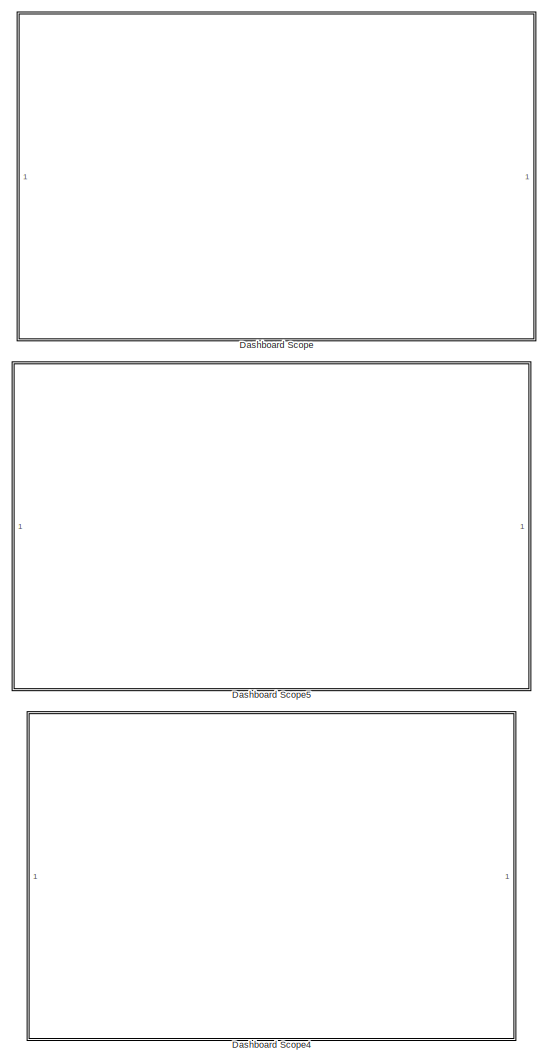
[diagram: root canvas - part 1/3, right side, full height]
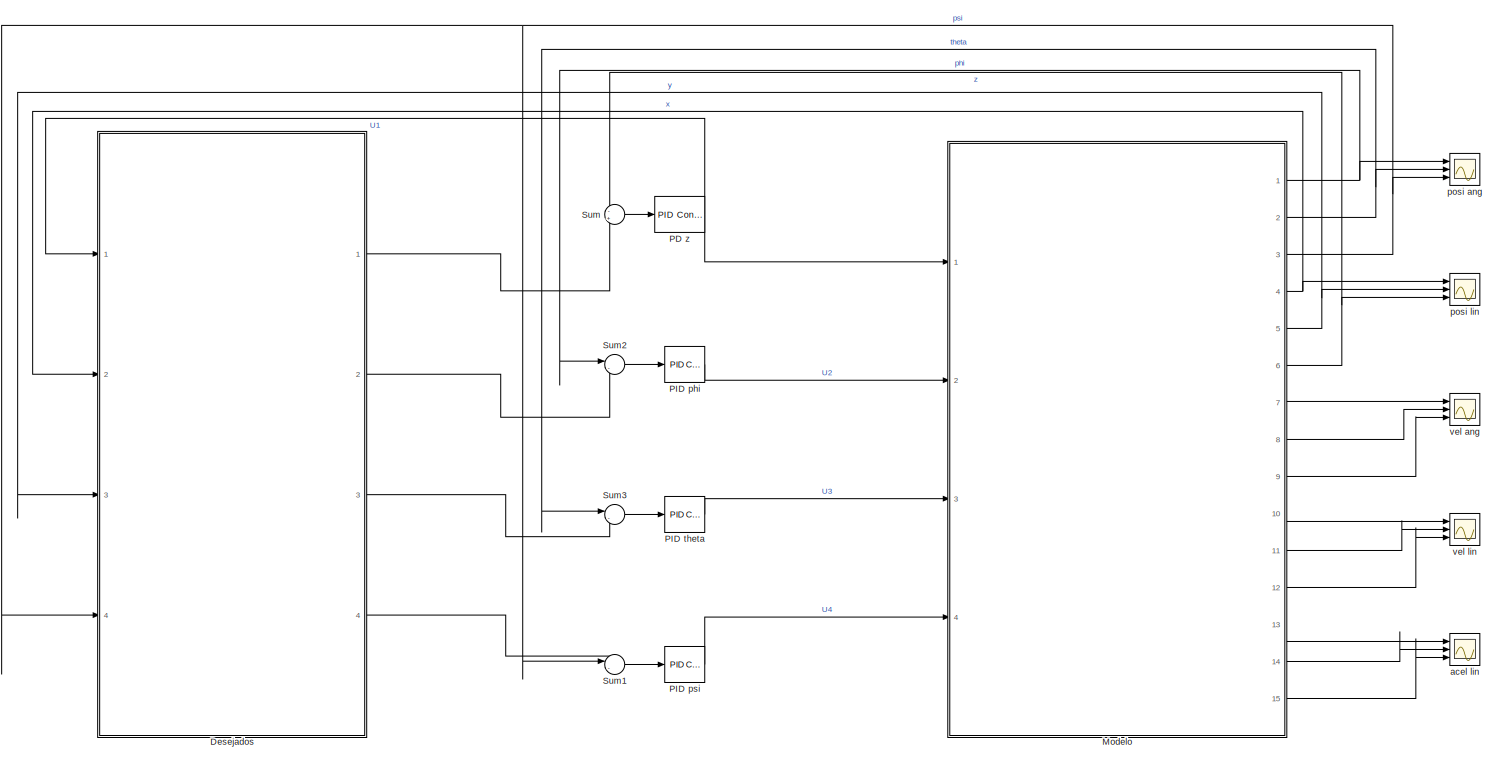
[diagram: root canvas - part 2/3, central region]
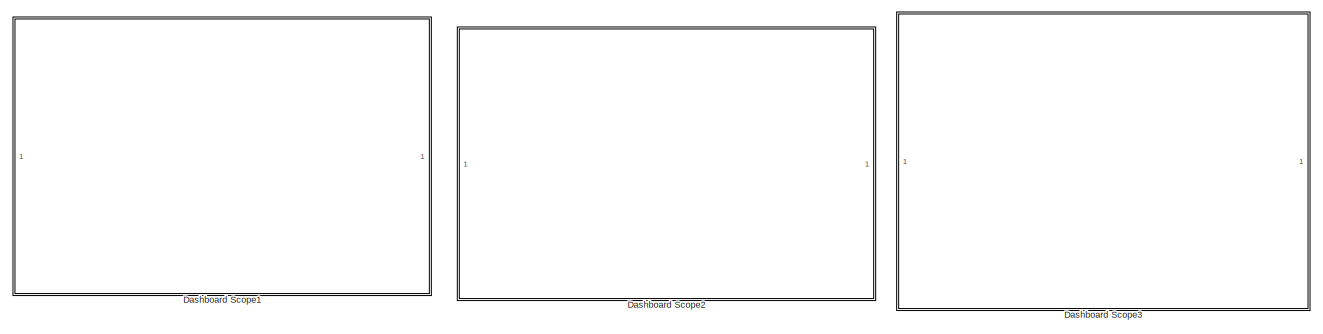
[diagram: root canvas - part 3/3, bottom left region]
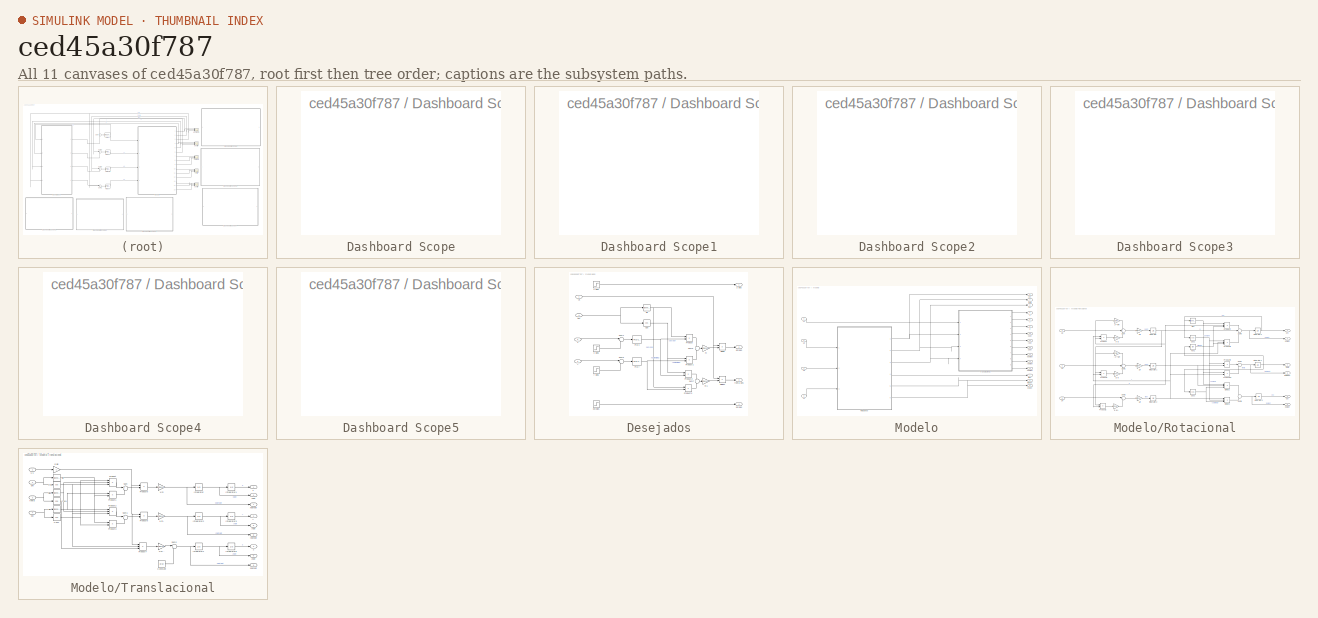
[diagram: thumbnail index - all 11 canvases of the model, root first then tree order]
MODEL slx_ced45a30f787
KIND model
CONFIG AbsTol = auto
CONFIG EnableMultiTasking = off
CONFIG FixedStep = auto
CONFIG MaxStep = auto
CONFIG MinStep = auto
CONFIG RelTol = 1e-3
CONFIG SampleTimeConstraint = Unconstrained
CONFIG Solver = VariableStepAuto
CONFIG SolverName = VariableStepAuto
CONFIG StartTime = 0.0
CONFIG StopTime = 20
BLOCK [SubSystem] Dashboard Scope
  DialogController = hmiCreateDDGDialog
  IsWebBlock = on
  MaskHideContents = on
  Ports = []
  RequestExecContextInheritance = off
BLOCK [SubSystem] Dashboard Scope1
  DialogController = hmiCreateDDGDialog
  IsWebBlock = on
  MaskHideContents = on
  Ports = []
  RequestExecContextInheritance = off
BLOCK [SubSystem] Dashboard Scope2
  DialogController = hmiCreateDDGDialog
  IsWebBlock = on
  MaskHideContents = on
  Ports = []
  RequestExecContextInheritance = off
BLOCK [SubSystem] Dashboard Scope3
  DialogController = hmiCreateDDGDialog
  IsWebBlock = on
  MaskHideContents = on
  Ports = []
  RequestExecContextInheritance = off
BLOCK [SubSystem] Dashboard Scope4
  DialogController = hmiCreateDDGDialog
  IsWebBlock = on
  MaskHideContents = on
  Ports = []
  RequestExecContextInheritance = off
BLOCK [SubSystem] Dashboard Scope5
  DialogController = hmiCreateDDGDialog
  IsWebBlock = on
  MaskHideContents = on
  Ports = []
  RequestExecContextInheritance = off
BLOCK [SubSystem] Desejados
  Ports = [4, 4]
  RequestExecContextInheritance = off
BLOCK [Trigonometry] Desejados/Cos
  Operator = cos
  Ports = [1, 1]
BLOCK [Product] Desejados/Divide
  InputSameDT = off
  Inputs = /*
  OutDataTypeStr = Inherit: Inherit via internal rule
  Ports = [2, 1]
  RndMeth = Floor
  SaturateOnIntegerOverflow = off
BLOCK [Product] Desejados/Divide1
  InputSameDT = off
  Inputs = /*
  OutDataTypeStr = Inherit: Inherit via internal rule
  Ports = [2, 1]
  RndMeth = Floor
  SaturateOnIntegerOverflow = off
BLOCK [Reference] Desejados/PID x  REF=simulink/Continuous/PID Controller
  Ports = [1, 1]
  SourceBlock = simulink/Continuous/PID Controller
  SourceProductBaseCode = SL
  SourceProductName = Simulink
  SourceType = PID 1dof
BLOCK [Reference] Desejados/PID y  REF=simulink/Continuous/PID Controller
  Ports = [1, 1]
  SourceBlock = simulink/Continuous/PID Controller
  SourceProductBaseCode = SL
  SourceProductName = Simulink
  SourceType = PID 1dof
BLOCK [Product] Desejados/Product
  InputSameDT = off
  OutDataTypeStr = Inherit: Inherit via internal rule
  Ports = [2, 1]
  RndMeth = Floor
  SaturateOnIntegerOverflow = off
BLOCK [Product] Desejados/Product1
  InputSameDT = off
  OutDataTypeStr = Inherit: Inherit via internal rule
  Ports = [2, 1]
  RndMeth = Floor
  SaturateOnIntegerOverflow = off
BLOCK [Product] Desejados/Product2
  InputSameDT = off
  OutDataTypeStr = Inherit: Inherit via internal rule
  Ports = [2, 1]
  RndMeth = Floor
  SaturateOnIntegerOverflow = off
BLOCK [Product] Desejados/Product3
  InputSameDT = off
  OutDataTypeStr = Inherit: Inherit via internal rule
  Ports = [2, 1]
  RndMeth = Floor
  SaturateOnIntegerOverflow = off
BLOCK [Trigonometry] Desejados/Sin
  Ports = [1, 1]
BLOCK [Sum] Desejados/Sum4
  IconShape = round
  InputSameDT = off
  Inputs = |-+
  OutDataTypeStr = Inherit: Inherit via internal rule
  Ports = [2, 1]
  SaturateOnIntegerOverflow = off
BLOCK [Sum] Desejados/Sum5
  IconShape = round
  InputSameDT = off
  Inputs = |-+
  OutDataTypeStr = Inherit: Inherit via internal rule
  Ports = [2, 1]
  SaturateOnIntegerOverflow = off
BLOCK [Sum] Desejados/Sum6
  IconShape = round
  InputSameDT = off
  Inputs = -+
  OutDataTypeStr = Inherit: Inherit via internal rule
  Ports = [2, 1]
  SaturateOnIntegerOverflow = off
BLOCK [Sum] Desejados/Sum7
  IconShape = round
  InputSameDT = off
  Inputs = --
  OutDataTypeStr = Inherit: Inherit via internal rule
  Ports = [2, 1]
  SaturateOnIntegerOverflow = off
BLOCK [Inport] Desejados/U1
  IconDisplay = Port number
BLOCK [Gain] Desejados/m
  Gain = massa
  OutDataTypeStr = Inherit: Inherit via internal rule
  ParamDataTypeStr = Inherit: Inherit via internal rule
  SaturateOnIntegerOverflow = off
BLOCK [Gain] Desejados/m1
  Gain = massa
  OutDataTypeStr = Inherit: Inherit via internal rule
  ParamDataTypeStr = Inherit: Inherit via internal rule
  SaturateOnIntegerOverflow = off
BLOCK [Outport] Desejados/phi des
  IconDisplay = Port number
  Port = 2
BLOCK [Inport] Desejados/psi
  IconDisplay = Port number
  Port = 4
BLOCK [Step] Desejados/psi DES
  SampleTime = 0
  Time = 0
BLOCK [Outport] Desejados/psi des
  IconDisplay = Port number
  Port = 4
BLOCK [Outport] Desejados/theta des
  IconDisplay = Port number
  Port = 3
BLOCK [Inport] Desejados/x
  IconDisplay = Port number
  Port = 2
BLOCK [Step] Desejados/x DES 
  SampleTime = 0
  Time = 0
BLOCK [Inport] Desejados/y
  IconDisplay = Port number
  Port = 3
BLOCK [Step] Desejados/y DES
  SampleTime = 0
  Time = 0
BLOCK [Step] Desejados/z DES
  SampleTime = 0
  Time = 0
BLOCK [Outport] Desejados/z des
  IconDisplay = Port number
BLOCK [SubSystem] Modelo
  Ports = [4, 15]
  RequestExecContextInheritance = off
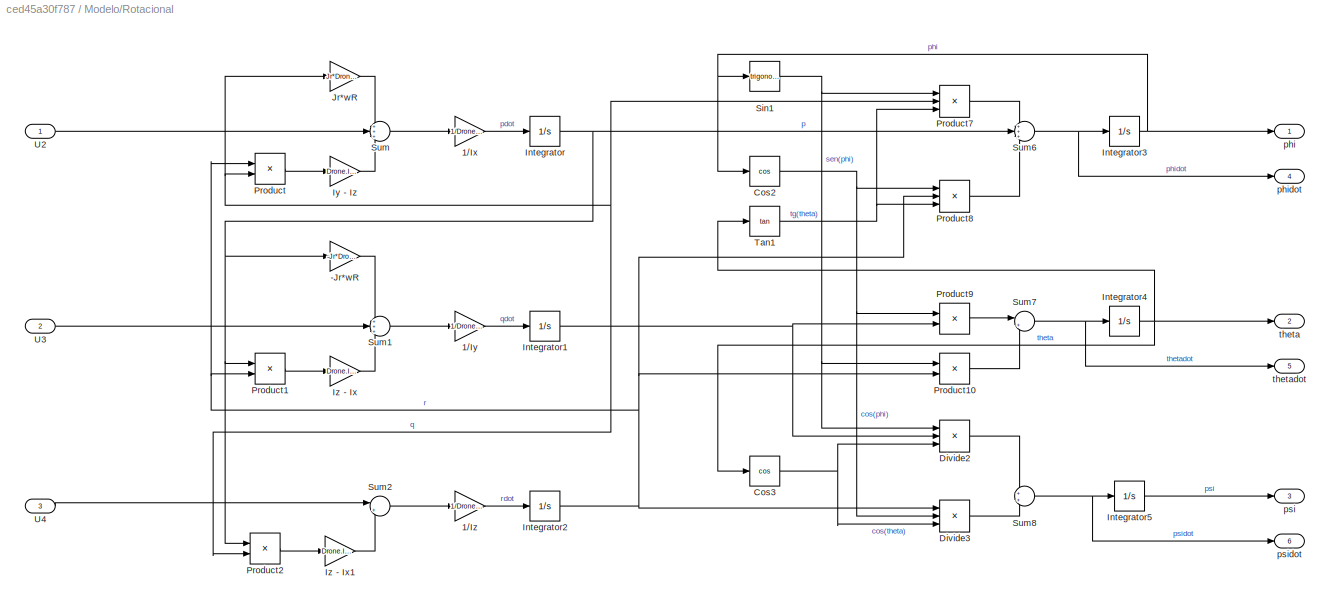
BLOCK [SubSystem] Modelo/Rotacional
  Ports = [3, 6]
  RequestExecContextInheritance = off
BLOCK [Gain] Modelo/Rotacional/-Jr*wR
  Gain = -Jr*Drone.wR
  OutDataTypeStr = Inherit: Inherit via internal rule
  ParamDataTypeStr = Inherit: Inherit via internal rule
  SaturateOnIntegerOverflow = off
BLOCK [Gain] Modelo/Rotacional/1//Ix
  Gain = 1/Drone.I(1,1)
  OutDataTypeStr = Inherit: Inherit via internal rule
  ParamDataTypeStr = Inherit: Inherit via internal rule
  SaturateOnIntegerOverflow = off
BLOCK [Gain] Modelo/Rotacional/1//Iy
  Gain = 1/Drone.I(2,2)
  OutDataTypeStr = Inherit: Inherit via internal rule
  ParamDataTypeStr = Inherit: Inherit via internal rule
  SaturateOnIntegerOverflow = off
BLOCK [Gain] Modelo/Rotacional/1//Iz
  Gain = 1/Drone.I(3,3)
  OutDataTypeStr = Inherit: Inherit via internal rule
  ParamDataTypeStr = Inherit: Inherit via internal rule
  SaturateOnIntegerOverflow = off
BLOCK [Trigonometry] Modelo/Rotacional/Cos2
  Operator = cos
  Ports = [1, 1]
BLOCK [Trigonometry] Modelo/Rotacional/Cos3
  Operator = cos
  Ports = [1, 1]
BLOCK [Product] Modelo/Rotacional/Divide2
  InputSameDT = off
  Inputs = **/
  OutDataTypeStr = Inherit: Inherit via internal rule
  Ports = [3, 1]
  RndMeth = Floor
  SaturateOnIntegerOverflow = off
BLOCK [Product] Modelo/Rotacional/Divide3
  InputSameDT = off
  Inputs = **/
  OutDataTypeStr = Inherit: Inherit via internal rule
  Ports = [3, 1]
  RndMeth = Floor
  SaturateOnIntegerOverflow = off
BLOCK [Integrator] Modelo/Rotacional/Integrator
  Ports = [1, 1]
BLOCK [Integrator] Modelo/Rotacional/Integrator1
  Ports = [1, 1]
BLOCK [Integrator] Modelo/Rotacional/Integrator2
  Ports = [1, 1]
BLOCK [Integrator] Modelo/Rotacional/Integrator3
  Ports = [1, 1]
BLOCK [Integrator] Modelo/Rotacional/Integrator4
  Ports = [1, 1]
BLOCK [Integrator] Modelo/Rotacional/Integrator5
  Ports = [1, 1]
BLOCK [Gain] Modelo/Rotacional/Iy - Iz
  Gain = Drone.I(2,2) - Drone.I(3,3)
  OutDataTypeStr = Inherit: Inherit via internal rule
  ParamDataTypeStr = Inherit: Inherit via internal rule
  SaturateOnIntegerOverflow = off
BLOCK [Gain] Modelo/Rotacional/Iz - Ix
  Gain = Drone.I(3,3) - Drone.I(1,1)
  OutDataTypeStr = Inherit: Inherit via internal rule
  ParamDataTypeStr = Inherit: Inherit via internal rule
  SaturateOnIntegerOverflow = off
BLOCK [Gain] Modelo/Rotacional/Iz - Ix1
  Gain = Drone.I(3,3) - Drone.I(1,1)
  OutDataTypeStr = Inherit: Inherit via internal rule
  ParamDataTypeStr = Inherit: Inherit via internal rule
  SaturateOnIntegerOverflow = off
BLOCK [Gain] Modelo/Rotacional/Jr*wR
  Gain = Jr*Drone.wR
  OutDataTypeStr = Inherit: Inherit via internal rule
  ParamDataTypeStr = Inherit: Inherit via internal rule
  SaturateOnIntegerOverflow = off
BLOCK [Product] Modelo/Rotacional/Product
  InputSameDT = off
  OutDataTypeStr = Inherit: Inherit via internal rule
  Ports = [2, 1]
  RndMeth = Floor
  SaturateOnIntegerOverflow = off
BLOCK [Product] Modelo/Rotacional/Product1
  InputSameDT = off
  OutDataTypeStr = Inherit: Inherit via internal rule
  Ports = [2, 1]
  RndMeth = Floor
  SaturateOnIntegerOverflow = off
BLOCK [Product] Modelo/Rotacional/Product10
  InputSameDT = off
  OutDataTypeStr = Inherit: Inherit via internal rule
  Ports = [2, 1]
  RndMeth = Floor
  SaturateOnIntegerOverflow = off
BLOCK [Product] Modelo/Rotacional/Product2
  InputSameDT = off
  OutDataTypeStr = Inherit: Inherit via internal rule
  Ports = [2, 1]
  RndMeth = Floor
  SaturateOnIntegerOverflow = off
BLOCK [Product] Modelo/Rotacional/Product7
  InputSameDT = off
  Inputs = 3
  OutDataTypeStr = Inherit: Inherit via internal rule
  Ports = [3, 1]
  RndMeth = Floor
  SaturateOnIntegerOverflow = off
BLOCK [Product] Modelo/Rotacional/Product8
  InputSameDT = off
  Inputs = 3
  OutDataTypeStr = Inherit: Inherit via internal rule
  Ports = [3, 1]
  RndMeth = Floor
  SaturateOnIntegerOverflow = off
BLOCK [Product] Modelo/Rotacional/Product9
  InputSameDT = off
  OutDataTypeStr = Inherit: Inherit via internal rule
  Ports = [2, 1]
  RndMeth = Floor
  SaturateOnIntegerOverflow = off
BLOCK [Trigonometry] Modelo/Rotacional/Sin1
  Ports = [1, 1]
BLOCK [Sum] Modelo/Rotacional/Sum
  IconShape = round
  InputSameDT = off
  Inputs = +++
  OutDataTypeStr = Inherit: Inherit via internal rule
  Ports = [3, 1]
  SaturateOnIntegerOverflow = off
BLOCK [Sum] Modelo/Rotacional/Sum1
  IconShape = round
  InputSameDT = off
  Inputs = +++
  OutDataTypeStr = Inherit: Inherit via internal rule
  Ports = [3, 1]
  SaturateOnIntegerOverflow = off
BLOCK [Sum] Modelo/Rotacional/Sum2
  IconShape = round
  InputSameDT = off
  Inputs = |++
  OutDataTypeStr = Inherit: Inherit via internal rule
  Ports = [2, 1]
  SaturateOnIntegerOverflow = off
BLOCK [Sum] Modelo/Rotacional/Sum6
  IconShape = round
  InputSameDT = off
  Inputs = +++
  OutDataTypeStr = Inherit: Inherit via internal rule
  Ports = [3, 1]
  SaturateOnIntegerOverflow = off
BLOCK [Sum] Modelo/Rotacional/Sum7
  IconShape = round
  InputSameDT = off
  Inputs = |+-
  OutDataTypeStr = Inherit: Inherit via internal rule
  Ports = [2, 1]
  SaturateOnIntegerOverflow = off
BLOCK [Sum] Modelo/Rotacional/Sum8
  IconShape = round
  InputSameDT = off
  OutDataTypeStr = Inherit: Inherit via internal rule
  Ports = [2, 1]
  SaturateOnIntegerOverflow = off
BLOCK [Trigonometry] Modelo/Rotacional/Tan1
  Operator = tan
  Ports = [1, 1]
BLOCK [Inport] Modelo/Rotacional/U2
  IconDisplay = Port number
BLOCK [Inport] Modelo/Rotacional/U3
  IconDisplay = Port number
  Port = 2
BLOCK [Inport] Modelo/Rotacional/U4
  IconDisplay = Port number
  Port = 3
BLOCK [Outport] Modelo/Rotacional/phi
  IconDisplay = Port number
BLOCK [Outport] Modelo/Rotacional/phidot
  IconDisplay = Port number
  Port = 4
BLOCK [Outport] Modelo/Rotacional/psi
  IconDisplay = Port number
  Port = 3
BLOCK [Outport] Modelo/Rotacional/psidot
  IconDisplay = Port number
  Port = 6
BLOCK [Outport] Modelo/Rotacional/theta
  IconDisplay = Port number
  Port = 2
BLOCK [Outport] Modelo/Rotacional/thetadot
  IconDisplay = Port number
  Port = 5
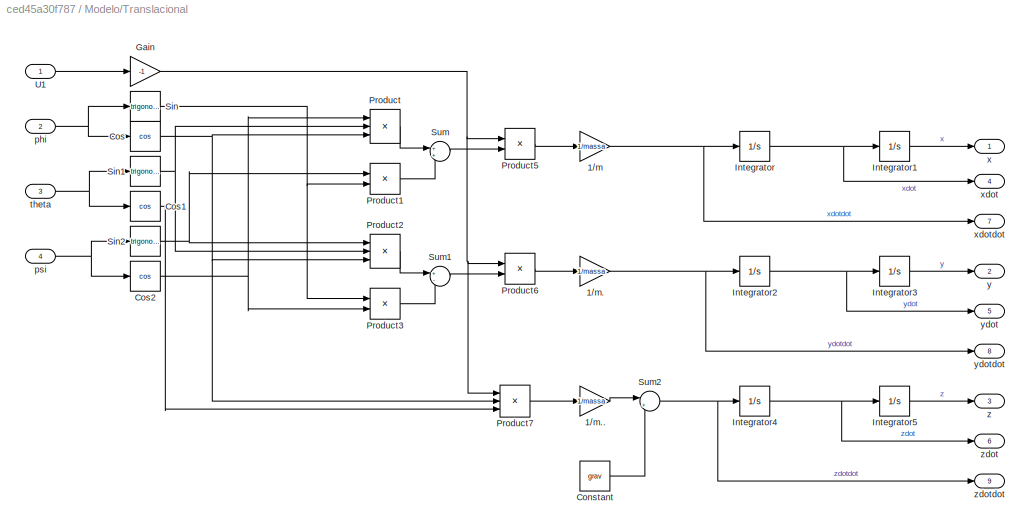
BLOCK [SubSystem] Modelo/Translacional
  Ports = [4, 9]
  RequestExecContextInheritance = off
BLOCK [Gain] Modelo/Translacional/1//m
  Gain = 1/massa
  OutDataTypeStr = Inherit: Inherit via internal rule
  ParamDataTypeStr = Inherit: Inherit via internal rule
  SaturateOnIntegerOverflow = off
BLOCK [Gain] Modelo/Translacional/1//m.
  Gain = 1/massa
  OutDataTypeStr = Inherit: Inherit via internal rule
  ParamDataTypeStr = Inherit: Inherit via internal rule
  SaturateOnIntegerOverflow = off
BLOCK [Gain] Modelo/Translacional/1//m..
  Gain = 1/massa
  OutDataTypeStr = Inherit: Inherit via internal rule
  ParamDataTypeStr = Inherit: Inherit via internal rule
  SaturateOnIntegerOverflow = off
BLOCK [Constant] Modelo/Translacional/Constant
  Value = grav
BLOCK [Trigonometry] Modelo/Translacional/Cos
  Operator = cos
  Ports = [1, 1]
BLOCK [Trigonometry] Modelo/Translacional/Cos1
  Operator = cos
  Ports = [1, 1]
BLOCK [Trigonometry] Modelo/Translacional/Cos2
  Operator = cos
  Ports = [1, 1]
BLOCK [Gain] Modelo/Translacional/Gain
  Gain = -1
  OutDataTypeStr = Inherit: Inherit via internal rule
  ParamDataTypeStr = Inherit: Inherit via internal rule
  SaturateOnIntegerOverflow = off
BLOCK [Integrator] Modelo/Translacional/Integrator
  Ports = [1, 1]
BLOCK [Integrator] Modelo/Translacional/Integrator1
  Ports = [1, 1]
BLOCK [Integrator] Modelo/Translacional/Integrator2
  Ports = [1, 1]
BLOCK [Integrator] Modelo/Translacional/Integrator3
  Ports = [1, 1]
BLOCK [Integrator] Modelo/Translacional/Integrator4
  Ports = [1, 1]
BLOCK [Integrator] Modelo/Translacional/Integrator5
  Ports = [1, 1]
BLOCK [Product] Modelo/Translacional/Product
  InputSameDT = off
  Inputs = 3
  OutDataTypeStr = Inherit: Inherit via internal rule
  Ports = [3, 1]
  RndMeth = Floor
  SaturateOnIntegerOverflow = off
BLOCK [Product] Modelo/Translacional/Product1
  InputSameDT = off
  OutDataTypeStr = Inherit: Inherit via internal rule
  Ports = [2, 1]
  RndMeth = Floor
  SaturateOnIntegerOverflow = off
BLOCK [Product] Modelo/Translacional/Product2
  InputSameDT = off
  Inputs = 3
  OutDataTypeStr = Inherit: Inherit via internal rule
  Ports = [3, 1]
  RndMeth = Floor
  SaturateOnIntegerOverflow = off
BLOCK [Product] Modelo/Translacional/Product3
  InputSameDT = off
  OutDataTypeStr = Inherit: Inherit via internal rule
  Ports = [2, 1]
  RndMeth = Floor
  SaturateOnIntegerOverflow = off
BLOCK [Product] Modelo/Translacional/Product5
  InputSameDT = off
  OutDataTypeStr = Inherit: Inherit via internal rule
  Ports = [2, 1]
  RndMeth = Floor
  SaturateOnIntegerOverflow = off
BLOCK [Product] Modelo/Translacional/Product6
  InputSameDT = off
  OutDataTypeStr = Inherit: Inherit via internal rule
  Ports = [2, 1]
  RndMeth = Floor
  SaturateOnIntegerOverflow = off
BLOCK [Product] Modelo/Translacional/Product7
  InputSameDT = off
  Inputs = 3
  OutDataTypeStr = Inherit: Inherit via internal rule
  Ports = [3, 1]
  RndMeth = Floor
  SaturateOnIntegerOverflow = off
BLOCK [Trigonometry] Modelo/Translacional/Sin
  Ports = [1, 1]
BLOCK [Trigonometry] Modelo/Translacional/Sin1
  Ports = [1, 1]
BLOCK [Trigonometry] Modelo/Translacional/Sin2
  Ports = [1, 1]
BLOCK [Sum] Modelo/Translacional/Sum
  IconShape = round
  InputSameDT = off
  OutDataTypeStr = Inherit: Inherit via internal rule
  Ports = [2, 1]
  SaturateOnIntegerOverflow = off
BLOCK [Sum] Modelo/Translacional/Sum1
  IconShape = round
  InputSameDT = off
  Inputs = +-
  OutDataTypeStr = Inherit: Inherit via internal rule
  Ports = [2, 1]
  SaturateOnIntegerOverflow = off
BLOCK [Sum] Modelo/Translacional/Sum2
  IconShape = round
  InputSameDT = off
  Inputs = |++
  OutDataTypeStr = Inherit: Inherit via internal rule
  Ports = [2, 1]
  SaturateOnIntegerOverflow = off
BLOCK [Inport] Modelo/Translacional/U1
  IconDisplay = Port number
BLOCK [Inport] Modelo/Translacional/phi
  IconDisplay = Port number
  Port = 2
BLOCK [Inport] Modelo/Translacional/psi
  IconDisplay = Port number
  Port = 4
BLOCK [Inport] Modelo/Translacional/theta
  IconDisplay = Port number
  Port = 3
BLOCK [Outport] Modelo/Translacional/x
  IconDisplay = Port number
BLOCK [Outport] Modelo/Translacional/xdot
  IconDisplay = Port number
  Port = 4
BLOCK [Outport] Modelo/Translacional/xdotdot
  IconDisplay = Port number
  Port = 7
BLOCK [Outport] Modelo/Translacional/y
  IconDisplay = Port number
  Port = 2
BLOCK [Outport] Modelo/Translacional/ydot
  IconDisplay = Port number
  Port = 5
BLOCK [Outport] Modelo/Translacional/ydotdot
  IconDisplay = Port number
  Port = 8
BLOCK [Outport] Modelo/Translacional/z
  IconDisplay = Port number
  Port = 3
BLOCK [Outport] Modelo/Translacional/zdot
  IconDisplay = Port number
  Port = 6
BLOCK [Outport] Modelo/Translacional/zdotdot
  IconDisplay = Port number
  Port = 9
BLOCK [Inport] Modelo/U1
  IconDisplay = Port number
BLOCK [Inport] Modelo/U2
  IconDisplay = Port number
  Port = 2
BLOCK [Inport] Modelo/U3
  IconDisplay = Port number
  Port = 3
BLOCK [Inport] Modelo/U4
  IconDisplay = Port number
  Port = 4
BLOCK [Outport] Modelo/fidot
  IconDisplay = Port number
  Port = 7
BLOCK [Outport] Modelo/phi
  IconDisplay = Port number
BLOCK [Outport] Modelo/psi
  IconDisplay = Port number
  Port = 3
BLOCK [Outport] Modelo/psidot
  IconDisplay = Port number
  Port = 9
BLOCK [Outport] Modelo/tetadot
  IconDisplay = Port number
  Port = 8
BLOCK [Outport] Modelo/theta
  IconDisplay = Port number
  Port = 2
BLOCK [Outport] Modelo/x
  IconDisplay = Port number
  Port = 4
BLOCK [Outport] Modelo/xdot
  IconDisplay = Port number
  Port = 10
BLOCK [Outport] Modelo/xdotdot
  IconDisplay = Port number
  Port = 13
BLOCK [Outport] Modelo/y
  IconDisplay = Port number
  Port = 5
BLOCK [Outport] Modelo/ydot
  IconDisplay = Port number
  Port = 11
BLOCK [Outport] Modelo/ydotdot
  IconDisplay = Port number
  Port = 14
BLOCK [Outport] Modelo/z
  IconDisplay = Port number
  Port = 6
BLOCK [Outport] Modelo/zdot
  IconDisplay = Port number
  Port = 12
BLOCK [Outport] Modelo/zdotdot
  IconDisplay = Port number
  Port = 15
BLOCK [Reference] PD z  REF=simulink/Continuous/PID Controller
  Ports = [1, 1]
  SourceBlock = simulink/Continuous/PID Controller
  SourceProductBaseCode = SL
  SourceProductName = Simulink
  SourceType = PID 1dof
BLOCK [Reference] PID phi  REF=simulink/Continuous/PID Controller
  Ports = [1, 1]
  SourceBlock = simulink/Continuous/PID Controller
  SourceProductBaseCode = SL
  SourceProductName = Simulink
  SourceType = PID 1dof
BLOCK [Reference] PID psi  REF=simulink/Continuous/PID Controller
  Ports = [1, 1]
  SourceBlock = simulink/Continuous/PID Controller
  SourceProductBaseCode = SL
  SourceProductName = Simulink
  SourceType = PID 1dof
BLOCK [Reference] PID theta  REF=simulink/Continuous/PID Controller
  Ports = [1, 1]
  SourceBlock = simulink/Continuous/PID Controller
  SourceProductBaseCode = SL
  SourceProductName = Simulink
  SourceType = PID 1dof
BLOCK [Sum] Sum
  IconShape = round
  InputSameDT = off
  Inputs = -+
  OutDataTypeStr = Inherit: Inherit via internal rule
  Ports = [2, 1]
  SaturateOnIntegerOverflow = off
BLOCK [Sum] Sum1
  IconShape = round
  InputSameDT = off
  Inputs = |-+
  OutDataTypeStr = Inherit: Inherit via internal rule
  Ports = [2, 1]
  SaturateOnIntegerOverflow = off
BLOCK [Sum] Sum2
  IconShape = round
  InputSameDT = off
  Inputs = |-+
  OutDataTypeStr = Inherit: Inherit via internal rule
  Ports = [2, 1]
  SaturateOnIntegerOverflow = off
BLOCK [Sum] Sum3
  IconShape = round
  InputSameDT = off
  Inputs = |-+
  OutDataTypeStr = Inherit: Inherit via internal rule
  Ports = [2, 1]
  SaturateOnIntegerOverflow = off
BLOCK [Scope] acel lin
  Floating = off
  NumInputPorts = 3
  Ports = [3]
  ScopeSpecificationString = Simulink.scopes.TimeScopeBlockCfg('CurrentConfiguration', extmgr.ConfigurationSet(extmgr.Configuration('Core','General UI',true),extmgr.Configuration('Core','Source UI',true),extmgr.Configuration('Sources','WiredSimulink',true,'DataLoggingVariableName','ScopeData1'),extmgr.Configuration('Visuals','Time Domain',true,'SerializedDisplays',{struct('MinYLimReal','-6.27656','MaxYLimReal','15.6265','YLab...<+1586ch>
BLOCK [Scope] posi ang
  Floating = off
  NumInputPorts = 3
  Ports = [3]
  ScopeSpecificationString = Simulink.scopes.TimeScopeBlockCfg('CurrentConfiguration', extmgr.ConfigurationSet(extmgr.Configuration('Core','General UI',true),extmgr.Configuration('Core','Source UI',true),extmgr.Configuration('Sources','WiredSimulink',true,'DataLoggingVariableName','ScopeData2'),extmgr.Configuration('Visuals','Time Domain',true,'SerializedDisplays',{struct('MinYLimReal','-0.72597','MaxYLimReal','1.51595','YLab...<+1579ch>
BLOCK [Scope] posi lin
  Floating = off
  NumInputPorts = 3
  Ports = [3]
  ScopeSpecificationString = Simulink.scopes.TimeScopeBlockCfg('CurrentConfiguration', extmgr.ConfigurationSet(extmgr.Configuration('Core','General UI',true),extmgr.Configuration('Core','Source UI',true),extmgr.Configuration('Sources','WiredSimulink',true,'DataLoggingVariableName','ScopeData2'),extmgr.Configuration('Visuals','Time Domain',true,'SerializedDisplays',{struct('MinYLimReal','-0.1753','MaxYLimReal','1.36192','YLabe...<+1582ch>
BLOCK [Scope] vel ang
  Floating = off
  NumInputPorts = 3
  Ports = [3]
  ScopeSpecificationString = Simulink.scopes.TimeScopeBlockCfg('CurrentConfiguration', extmgr.ConfigurationSet(extmgr.Configuration('Core','General UI',true),extmgr.Configuration('Core','Source UI',true),extmgr.Configuration('Sources','WiredSimulink',true,'DataLoggingVariableName','ScopeData3'),extmgr.Configuration('Visuals','Time Domain',true,'SerializedDisplays',{struct('MinYLimReal','-219.15132','MaxYLimReal','104.84375','...<+1528ch>
BLOCK [Scope] vel lin
  Floating = off
  NumInputPorts = 3
  Ports = [3]
  ScopeSpecificationString = Simulink.scopes.TimeScopeBlockCfg('CurrentConfiguration', extmgr.ConfigurationSet(extmgr.Configuration('Core','General UI',true),extmgr.Configuration('Core','Source UI',true),extmgr.Configuration('Sources','WiredSimulink',true),extmgr.Configuration('Visuals','Time Domain',true,'SerializedDisplays',{struct('MinYLimReal','-1.57468','MaxYLimReal','4.76394','YLabelReal','','MinYLimMag','0.00000','MaxY...<+1496ch>
NET Desejados/Cos:1 -> Desejados/Product1:1, Desejados/Product2:1
LINE Desejados/Divide1:1 -> Desejados/theta des:1
LINE Desejados/Divide:1 -> Desejados/phi des:1
NET Desejados/PID x:1 -> Desejados/Product2:2, Desejados/Product:2
NET Desejados/PID y:1 -> Desejados/Product1:2, Desejados/Product3:2
LINE Desejados/Product1:1 -> Desejados/Sum6:2
LINE Desejados/Product2:1 -> Desejados/Sum7:1
LINE Desejados/Product3:1 -> Desejados/Sum7:2
LINE Desejados/Product:1 -> Desejados/Sum6:1
NET Desejados/Sin:1 -> Desejados/Product3:1, Desejados/Product:1
LINE Desejados/Sum4:1 -> Desejados/PID x:1
LINE Desejados/Sum5:1 -> Desejados/PID y:1
LINE Desejados/Sum6:1 -> Desejados/m:1
LINE Desejados/Sum7:1 -> Desejados/m1:1
NET Desejados/U1:1 -> Desejados/Divide1:1, Desejados/Divide:1
LINE Desejados/m1:1 -> Desejados/Divide1:2
LINE Desejados/m:1 -> Desejados/Divide:2
LINE Desejados/psi DES:1 -> Desejados/psi des:1
NET Desejados/psi:1 -> Desejados/Cos:1, Desejados/Sin:1
LINE Desejados/x DES :1 -> Desejados/Sum4:2
LINE Desejados/x:1 -> Desejados/Sum4:1
LINE Desejados/y DES:1 -> Desejados/Sum5:2
LINE Desejados/y:1 -> Desejados/Sum5:1
LINE Desejados/z DES:1 -> Desejados/z des:1
LINE Desejados:1 -> Sum:2
LINE Desejados:2 -> Sum2:2
LINE Desejados:3 -> Sum3:2
LINE Desejados:4 -> Sum1:2
LINE Modelo/Rotacional/-Jr*wR:1 -> Modelo/Rotacional/Sum1:1
LINE Modelo/Rotacional/1//Ix:1 -> Modelo/Rotacional/Integrator:1
LINE Modelo/Rotacional/1//Iy:1 -> Modelo/Rotacional/Integrator1:1
LINE Modelo/Rotacional/1//Iz:1 -> Modelo/Rotacional/Integrator2:1
NET Modelo/Rotacional/Cos2:1 -> Modelo/Rotacional/Divide3:2, Modelo/Rotacional/Product8:1, Modelo/Rotacional/Product9:1
NET Modelo/Rotacional/Cos3:1 -> Modelo/Rotacional/Divide2:3, Modelo/Rotacional/Divide3:3
LINE Modelo/Rotacional/Divide2:1 -> Modelo/Rotacional/Sum8:1
LINE Modelo/Rotacional/Divide3:1 -> Modelo/Rotacional/Sum8:2
NET Modelo/Rotacional/Integrator1:1 -> Modelo/Rotacional/Divide2:2, Modelo/Rotacional/Jr*wR:1, Modelo/Rotacional/Product2:2, Modelo/Rotacional/Product7:2, Modelo/Rotacional/Product9:2, Modelo/Rotacional/Product:2
NET Modelo/Rotacional/Integrator2:1 -> Modelo/Rotacional/Divide3:1, Modelo/Rotacional/Product10:2, Modelo/Rotacional/Product1:2, Modelo/Rotacional/Product8:2, Modelo/Rotacional/Product:1
NET Modelo/Rotacional/Integrator3:1 -> Modelo/Rotacional/Cos2:1, Modelo/Rotacional/Sin1:1, Modelo/Rotacional/phi:1
NET Modelo/Rotacional/Integrator4:1 -> Modelo/Rotacional/Cos3:1, Modelo/Rotacional/Tan1:1, Modelo/Rotacional/theta:1
LINE Modelo/Rotacional/Integrator5:1 -> Modelo/Rotacional/psi:1
NET Modelo/Rotacional/Integrator:1 -> Modelo/Rotacional/-Jr*wR:1, Modelo/Rotacional/Product1:1, Modelo/Rotacional/Product2:1, Modelo/Rotacional/Sum6:2
LINE Modelo/Rotacional/Iy - Iz:1 -> Modelo/Rotacional/Sum:3
LINE Modelo/Rotacional/Iz - Ix1:1 -> Modelo/Rotacional/Sum2:2
LINE Modelo/Rotacional/Iz - Ix:1 -> Modelo/Rotacional/Sum1:3
LINE Modelo/Rotacional/Jr*wR:1 -> Modelo/Rotacional/Sum:1
LINE Modelo/Rotacional/Product10:1 -> Modelo/Rotacional/Sum7:2
LINE Modelo/Rotacional/Product1:1 -> Modelo/Rotacional/Iz - Ix:1
LINE Modelo/Rotacional/Product2:1 -> Modelo/Rotacional/Iz - Ix1:1
LINE Modelo/Rotacional/Product7:1 -> Modelo/Rotacional/Sum6:1
LINE Modelo/Rotacional/Product8:1 -> Modelo/Rotacional/Sum6:3
LINE Modelo/Rotacional/Product9:1 -> Modelo/Rotacional/Sum7:1
LINE Modelo/Rotacional/Product:1 -> Modelo/Rotacional/Iy - Iz:1
NET Modelo/Rotacional/Sin1:1 -> Modelo/Rotacional/Divide2:1, Modelo/Rotacional/Product10:1, Modelo/Rotacional/Product7:1
LINE Modelo/Rotacional/Sum1:1 -> Modelo/Rotacional/1//Iy:1
LINE Modelo/Rotacional/Sum2:1 -> Modelo/Rotacional/1//Iz:1
NET Modelo/Rotacional/Sum6:1 -> Modelo/Rotacional/Integrator3:1, Modelo/Rotacional/phidot:1
NET Modelo/Rotacional/Sum7:1 -> Modelo/Rotacional/Integrator4:1, Modelo/Rotacional/thetadot:1
NET Modelo/Rotacional/Sum8:1 -> Modelo/Rotacional/Integrator5:1, Modelo/Rotacional/psidot:1
LINE Modelo/Rotacional/Sum:1 -> Modelo/Rotacional/1//Ix:1
NET Modelo/Rotacional/Tan1:1 -> Modelo/Rotacional/Product7:3, Modelo/Rotacional/Product8:3
LINE Modelo/Rotacional/U2:1 -> Modelo/Rotacional/Sum:2
LINE Modelo/Rotacional/U3:1 -> Modelo/Rotacional/Sum1:2
LINE Modelo/Rotacional/U4:1 -> Modelo/Rotacional/Sum2:1
NET Modelo/Rotacional:1 -> Modelo/Translacional:2, Modelo/phi:1
NET Modelo/Rotacional:2 -> Modelo/Translacional:3, Modelo/theta:1
NET Modelo/Rotacional:3 -> Modelo/Translacional:4, Modelo/psi:1
LINE Modelo/Rotacional:4 -> Modelo/fidot:1
LINE Modelo/Rotacional:5 -> Modelo/tetadot:1
LINE Modelo/Rotacional:6 -> Modelo/psidot:1
LINE Modelo/Translacional/1//m..:1 -> Modelo/Translacional/Sum2:1
NET Modelo/Translacional/1//m.:1 -> Modelo/Translacional/Integrator2:1, Modelo/Translacional/ydotdot:1
NET Modelo/Translacional/1//m:1 -> Modelo/Translacional/Integrator:1, Modelo/Translacional/xdotdot:1
LINE Modelo/Translacional/Constant:1 -> Modelo/Translacional/Sum2:2
LINE Modelo/Translacional/Cos1:1 -> Modelo/Translacional/Product7:3
NET Modelo/Translacional/Cos2:1 -> Modelo/Translacional/Product3:2, Modelo/Translacional/Product:1
NET Modelo/Translacional/Cos:1 -> Modelo/Translacional/Product2:3, Modelo/Translacional/Product7:2, Modelo/Translacional/Product:3
NET Modelo/Translacional/Gain:1 -> Modelo/Translacional/Product5:1, Modelo/Translacional/Product6:1, Modelo/Translacional/Product7:1
LINE Modelo/Translacional/Integrator1:1 -> Modelo/Translacional/x:1
NET Modelo/Translacional/Integrator2:1 -> Modelo/Translacional/Integrator3:1, Modelo/Translacional/ydot:1
LINE Modelo/Translacional/Integrator3:1 -> Modelo/Translacional/y:1
NET Modelo/Translacional/Integrator4:1 -> Modelo/Translacional/Integrator5:1, Modelo/Translacional/zdot:1
LINE Modelo/Translacional/Integrator5:1 -> Modelo/Translacional/z:1
NET Modelo/Translacional/Integrator:1 -> Modelo/Translacional/Integrator1:1, Modelo/Translacional/xdot:1
LINE Modelo/Translacional/Product1:1 -> Modelo/Translacional/Sum:2
LINE Modelo/Translacional/Product2:1 -> Modelo/Translacional/Sum1:1
LINE Modelo/Translacional/Product3:1 -> Modelo/Translacional/Sum1:2
LINE Modelo/Translacional/Product5:1 -> Modelo/Translacional/1//m:1
LINE Modelo/Translacional/Product6:1 -> Modelo/Translacional/1//m.:1
LINE Modelo/Translacional/Product7:1 -> Modelo/Translacional/1//m..:1
LINE Modelo/Translacional/Product:1 -> Modelo/Translacional/Sum:1
NET Modelo/Translacional/Sin1:1 -> Modelo/Translacional/Product2:2, Modelo/Translacional/Product:2
NET Modelo/Translacional/Sin2:1 -> Modelo/Translacional/Product1:1, Modelo/Translacional/Product2:1
NET Modelo/Translacional/Sin:1 -> Modelo/Translacional/Product1:2, Modelo/Translacional/Product3:1
LINE Modelo/Translacional/Sum1:1 -> Modelo/Translacional/Product6:2
NET Modelo/Translacional/Sum2:1 -> Modelo/Translacional/Integrator4:1, Modelo/Translacional/zdotdot:1
LINE Modelo/Translacional/Sum:1 -> Modelo/Translacional/Product5:2
LINE Modelo/Translacional/U1:1 -> Modelo/Translacional/Gain:1
NET Modelo/Translacional/phi:1 -> Modelo/Translacional/Cos:1, Modelo/Translacional/Sin:1
NET Modelo/Translacional/psi:1 -> Modelo/Translacional/Cos2:1, Modelo/Translacional/Sin2:1
NET Modelo/Translacional/theta:1 -> Modelo/Translacional/Cos1:1, Modelo/Translacional/Sin1:1
LINE Modelo/Translacional:1 -> Modelo/x:1
LINE Modelo/Translacional:2 -> Modelo/y:1
LINE Modelo/Translacional:3 -> Modelo/z:1
LINE Modelo/Translacional:4 -> Modelo/xdot:1
LINE Modelo/Translacional:5 -> Modelo/ydot:1
LINE Modelo/Translacional:6 -> Modelo/zdot:1
LINE Modelo/Translacional:7 -> Modelo/xdotdot:1
LINE Modelo/Translacional:8 -> Modelo/ydotdot:1
LINE Modelo/Translacional:9 -> Modelo/zdotdot:1
LINE Modelo/U1:1 -> Modelo/Translacional:1
LINE Modelo/U2:1 -> Modelo/Rotacional:1
LINE Modelo/U3:1 -> Modelo/Rotacional:2
LINE Modelo/U4:1 -> Modelo/Rotacional:3
NET Modelo:1 -> Sum2:1, posi ang:1
LINE Modelo:10 -> vel lin:1
LINE Modelo:11 -> vel lin:2
LINE Modelo:12 -> vel lin:3
LINE Modelo:13 -> acel lin:1
LINE Modelo:14 -> acel lin:2
LINE Modelo:15 -> acel lin:3
NET Modelo:2 -> Sum3:1, posi ang:2
NET Modelo:3 -> Desejados:4, Sum1:1, posi ang:3
NET Modelo:4 -> Desejados:2, posi lin:1
NET Modelo:5 -> Desejados:3, posi lin:2
NET Modelo:6 -> Sum:1, posi lin:3
LINE Modelo:7 -> vel ang:1
LINE Modelo:8 -> vel ang:2
LINE Modelo:9 -> vel ang:3
NET PD z:1 -> Desejados:1, Modelo:1
LINE PID phi:1 -> Modelo:2
LINE PID psi:1 -> Modelo:4
LINE PID theta:1 -> Modelo:3
LINE Sum1:1 -> PID psi:1
LINE Sum2:1 -> PID phi:1
LINE Sum3:1 -> PID theta:1
LINE Sum:1 -> PD z:1
note: NET lines group one-source signal fan-out (src -> all destinations, sorted); 1:1 wires keep LINE
